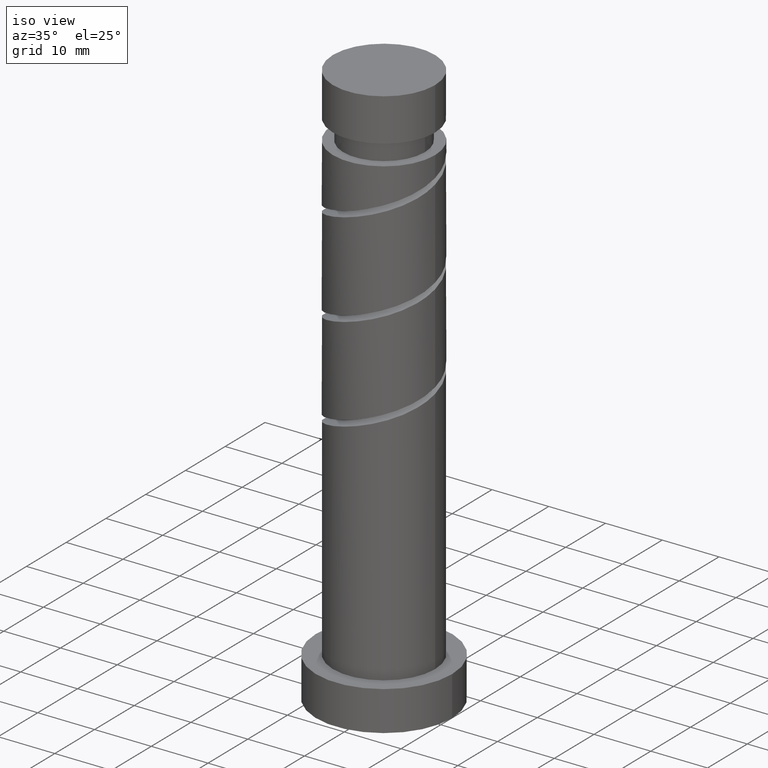
[diagram: clean part render]
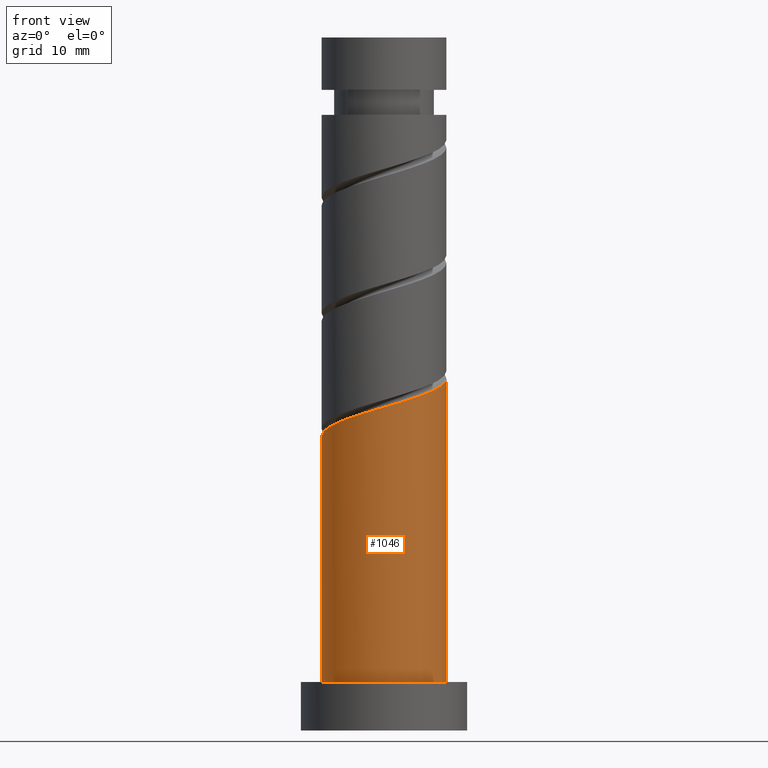
[diagram: tour spotlight — one face highlighted and labeled with its STEP entity id]
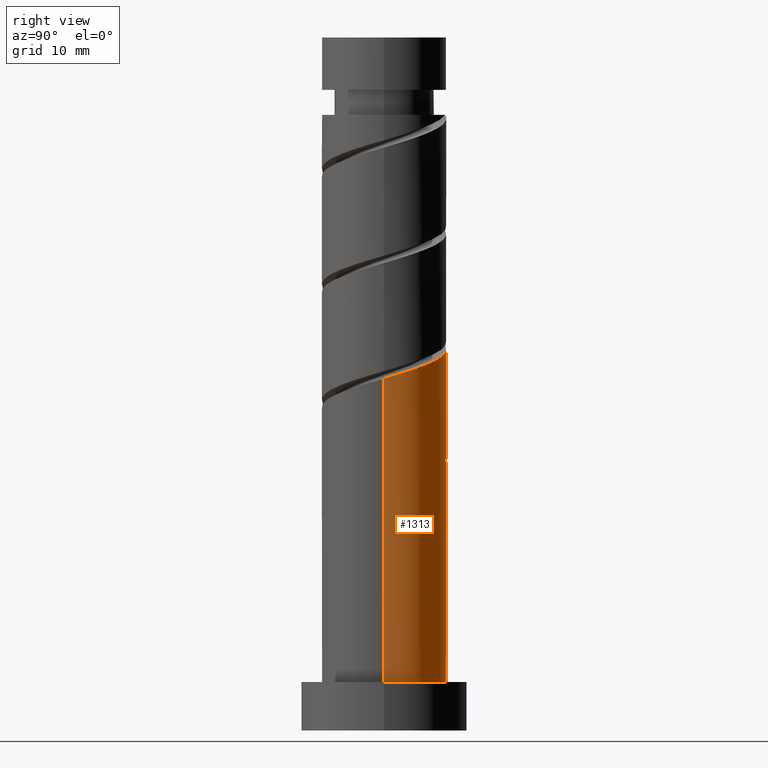
[diagram: tour spotlight — one face highlighted and labeled with its STEP entity id]
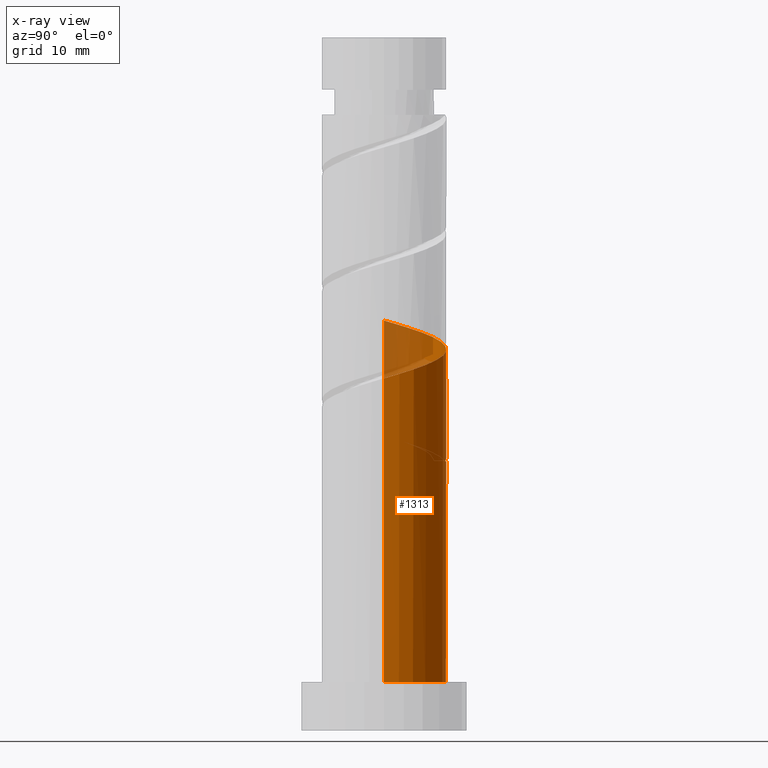
[diagram: x-ray of the same camera — body ghosted, this tour face saturated]
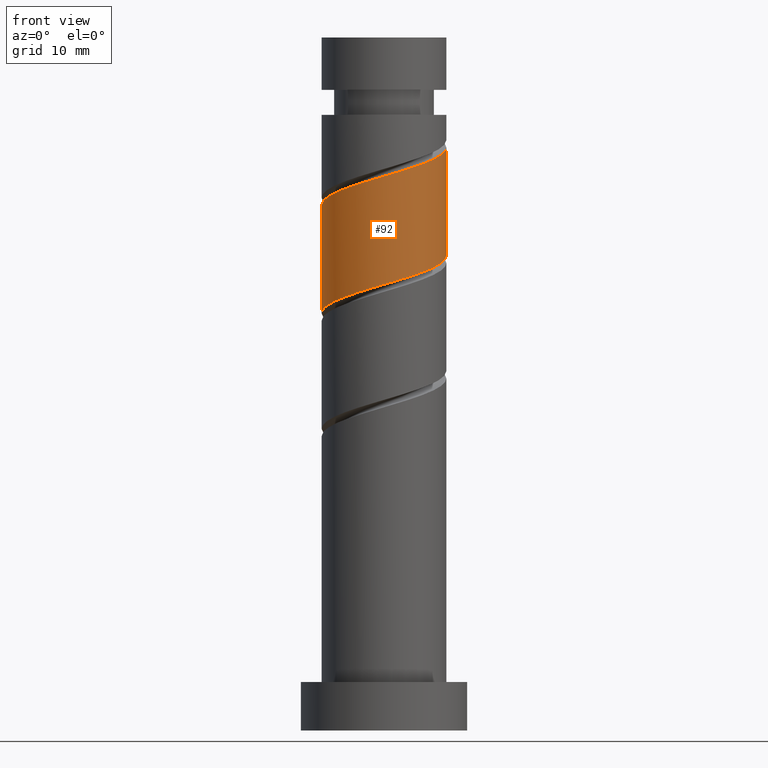
[diagram: tour spotlight — one face highlighted and labeled with its STEP entity id]
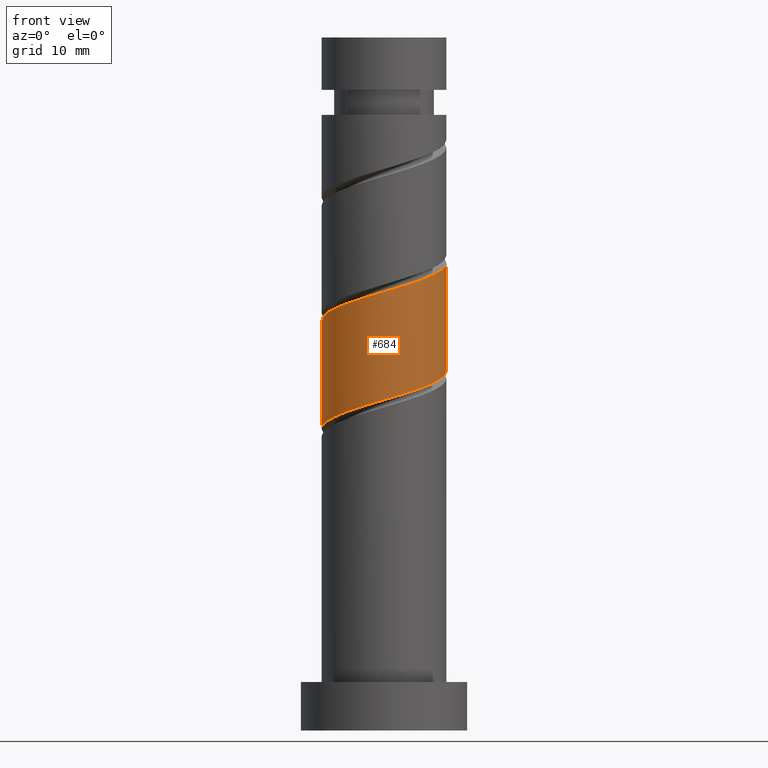
[diagram: tour spotlight — one face highlighted and labeled with its STEP entity id]
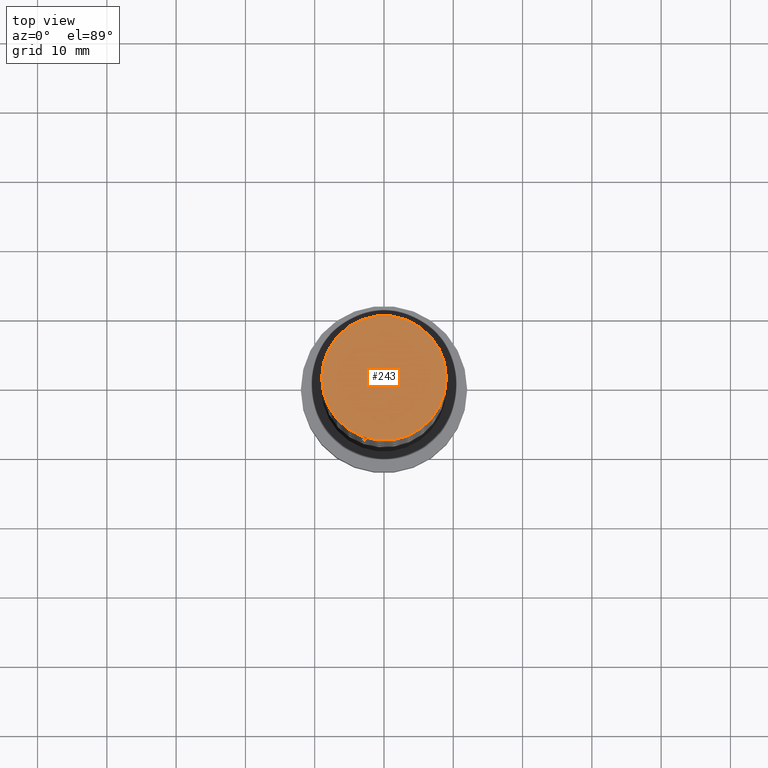
[diagram: tour spotlight — one face highlighted and labeled with its STEP entity id]
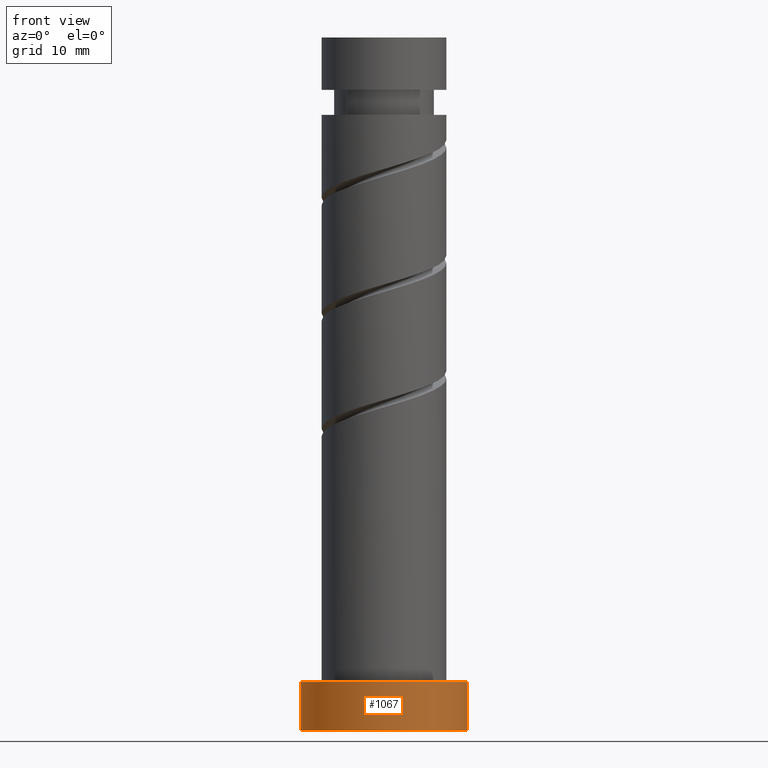
[diagram: tour spotlight — one face highlighted and labeled with its STEP entity id]
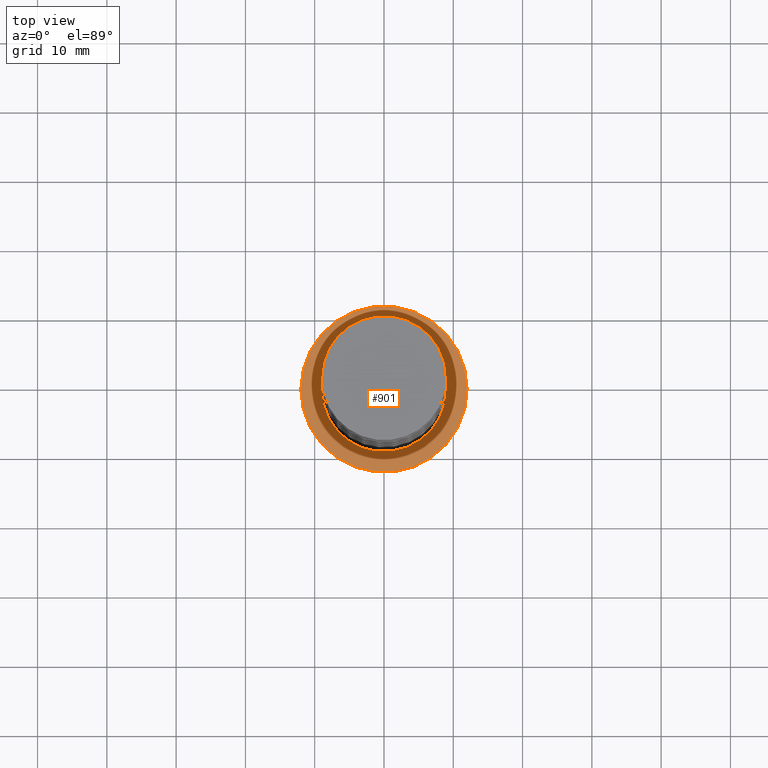
[diagram: tour spotlight — one face highlighted and labeled with its STEP entity id]
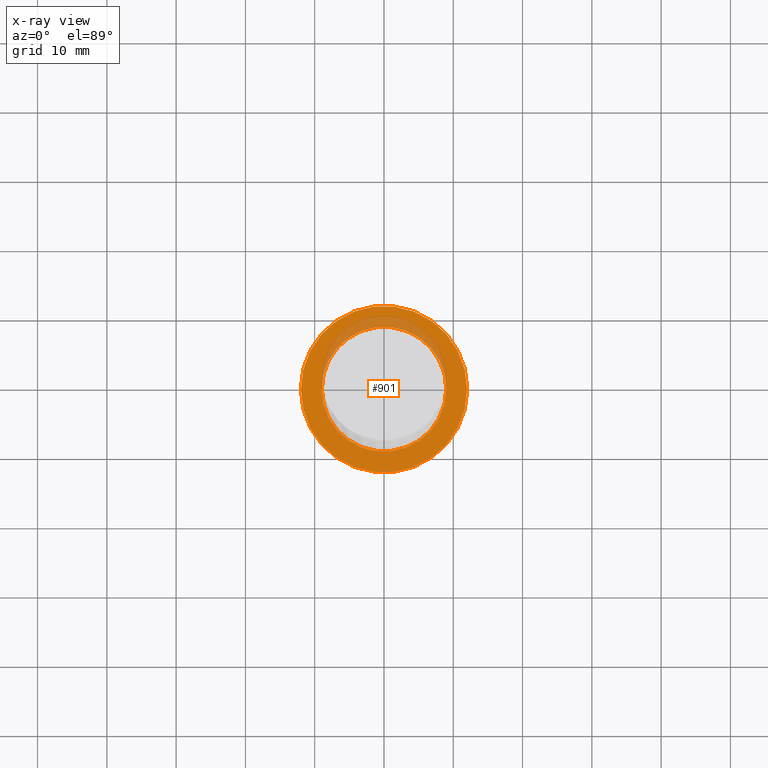
[diagram: x-ray of the same camera — body ghosted, this tour face saturated]
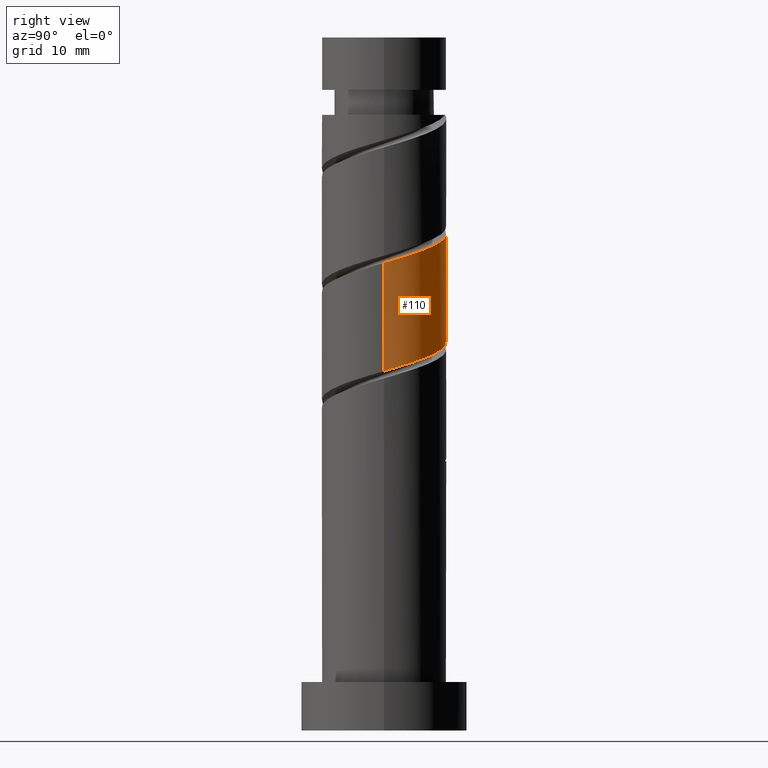
[diagram: tour spotlight — one face highlighted and labeled with its STEP entity id]
A machine part: a face-by-face anatomy tour. The part has 21 B-rep faces; the first image is the clean iso view, then the 8 largest visible faces are spotlighted one at a time (largest first), each with its STEP entity span.

Face 1 — front view, entity #1046. In plain terms, the highlighted cylindrical surface (partial cylindrical patch) has radius 9 mm, axis along (-0, -0, -1).
Definition (entity closure, byte-faithful):
#1 = CARTESIAN_POINT ( 'NONE',  ( -9.000000000000008882, -0.1161150689881842585, 42.51647233363011225 ) ) ;
#2 = ORIENTED_EDGE ( 'NONE', *, *, #941, .T. ) ;
#11 = LINE ( 'NONE', #360, #1248 ) ;
#17 = DIRECTION ( 'NONE',  ( -0.000000000000000000, -0.000000000000000000, -1.000000000000000000 ) ) ;
#65 = CARTESIAN_POINT ( 'NONE',  ( 6.052990440349811152, -6.846874780746384559, 48.56886540357541548 ) ) ;
#80 = EDGE_CURVE ( 'NONE', #1151, #347, #11, .T. ) ;
#117 = CARTESIAN_POINT ( 'NONE',  ( -8.956062716832283499, -1.818606099834100931, 43.01330984801985835 ) ) ;
#148 = CARTESIAN_POINT ( 'NONE',  ( -4.297418442531588667, -7.907730061768014629, 45.32812466283465369 ) ) ;
#168 = CARTESIAN_POINT ( 'NONE',  ( 7.041354992338979102, -5.605293914850772552, 49.03182836653836318 ) ) ;
#247 = CARTESIAN_POINT ( 'NONE',  ( -8.375004422108588642, -3.295345343004549843, 43.47627281098281316 ) ) ;
#256 = CARTESIAN_POINT ( 'NONE',  ( 0.000000000000000000, 0.000000000000000000, 100.0000000000000000 ) ) ;
#292 = CARTESIAN_POINT ( 'NONE',  ( 9.000000000000010658, -7.200581875602767441E-15, 50.81578829303109046 ) ) ;
#306 = CARTESIAN_POINT ( 'NONE',  ( 8.533832754774712370, -2.858968085434741457, 49.95775429246428700 ) ) ;
#315 = EDGE_LOOP ( 'NONE', ( #1032, #1389, #338, #2 ) ) ;
#338 = ORIENTED_EDGE ( 'NONE', *, *, #997, .T. ) ;
#347 = VERTEX_POINT ( 'NONE', #1181 ) ;
#360 = CARTESIAN_POINT ( 'NONE',  ( 9.000000000000000000, 1.102182119232617517E-15, 100.0000000000000000 ) ) ;
#398 =( BOUNDED_CURVE ( )  B_SPLINE_CURVE ( 2, ( #822, #1, #938, #117, #247, #946, #832, #565, #148, #973, #736, #877, #516, #1430, #1310, #65, #168, #1223, #306, #405, #292 ),
 .UNSPECIFIED., .F., .T. ) 
 B_SPLINE_CURVE_WITH_KNOTS ( ( 3, 2, 2, 2, 2, 2, 2, 2, 2, 2, 3 ),
 ( 0.05452480538552905570, 0.05555555555555558023, 0.06944444444444441977, 0.08333333333333337034, 0.09722222222222220989, 0.1111111111111111605, 0.1250000000000000000, 0.1388888888888888395, 0.1527777777777777901, 0.1666666666666666297, 0.1795248053855290626 ),
 .UNSPECIFIED. ) 
 CURVE ( )  GEOMETRIC_REPRESENTATION_ITEM ( )  RATIONAL_B_SPLINE_CURVE ( ( 0.9071930855141258077, 0.9080659294509734192, 0.9090909090909135015, 0.8952797754656478535, 0.9090909090909135015, 0.8952797754656478535, 0.9090909090909135015, 0.8952797754656478535, 0.9090909090909135015, 0.8952797754656478535, 0.9090909090909135015, 0.8952797754656478535, 0.9090909090909135015, 0.8952797754656478535, 0.9090909090909135015, 0.8952797754656478535, 0.9090909090909135015, 0.8952797754656478535, 0.9090909090909135015, 0.8963047551055879358, 0.9071930855141256966 ) ) 
 REPRESENTATION_ITEM ( '' )  );
#405 = CARTESIAN_POINT ( 'NONE',  ( 9.000000000000012434, -1.467489346384119875, 50.38586878066547570 ) ) ;
#428 = CARTESIAN_POINT ( 'NONE',  ( 9.000000000000010658, -7.200581875602767441E-15, 50.81578829303109757 ) ) ;
#459 = CARTESIAN_POINT ( 'NONE',  ( 0.000000000000000000, 0.000000000000000000, 7.000000000000000000 ) ) ;
#468 = VERTEX_POINT ( 'NONE', #1315 ) ;
#516 = CARTESIAN_POINT ( 'NONE',  ( 1.790977386791915427, -8.820000000000012719, 47.17997651468652975 ) ) ;
#565 = CARTESIAN_POINT ( 'NONE',  ( -5.691764608580704987, -7.149979242955548209, 44.86516169987172020 ) ) ;
#690 = CYLINDRICAL_SURFACE ( 'NONE', #1063, 9.000000000000000000 ) ;
#699 = DIRECTION ( 'NONE',  ( -0.000000000000000000, -0.000000000000000000, -1.000000000000000000 ) ) ;
#708 = LINE ( 'NONE', #1062, #894 ) ;
#736 = CARTESIAN_POINT ( 'NONE',  ( -1.333649429769610206, -8.900639257855328168, 46.25405058876059172 ) ) ;
#796 = CIRCLE ( 'NONE', #848, 9.000000000000000000 ) ;
#822 = CARTESIAN_POINT ( 'NONE',  ( -9.000000000000010658, 7.215520842149660164E-15, 42.48245495969775476 ) ) ;
#832 = CARTESIAN_POINT ( 'NONE',  ( -6.742855367982798498, -5.961031914565271705, 44.40219873690873698 ) ) ;
#848 = AXIS2_PLACEMENT_3D ( 'NONE', #459, #927, #1385 ) ;
#877 = CARTESIAN_POINT ( 'NONE',  ( 0.2357734169432503246, -9.135797635130170846, 46.71701355172357495 ) ) ;
#894 = VECTOR ( 'NONE', #17, 1000.000000000000000 ) ;
#927 = DIRECTION ( 'NONE',  ( 0.000000000000000000, 0.000000000000000000, 1.000000000000000000 ) ) ;
#938 = CARTESIAN_POINT ( 'NONE',  ( -8.997004341026784147, -0.2321914889598951093, 42.55034688505688933 ) ) ;
#941 = EDGE_CURVE ( 'NONE', #468, #347, #796, .T. ) ;
#946 = CARTESIAN_POINT ( 'NONE',  ( -7.793946127384896450, -4.772084586175003196, 43.93923577394579638 ) ) ;
#973 = CARTESIAN_POINT ( 'NONE',  ( -2.903072276482469682, -8.665480880580485490, 45.79108762579763692 ) ) ;
#997 = EDGE_CURVE ( 'NONE', #1289, #468, #708, .T. ) ;
#1032 = ORIENTED_EDGE ( 'NONE', *, *, #80, .F. ) ;
#1046 = ADVANCED_FACE ( 'NONE', ( #1141 ), #690, .T. ) ;
#1062 = CARTESIAN_POINT ( 'NONE',  ( -9.000000000000000000, 0.000000000000000000, 100.0000000000000000 ) ) ;
#1063 = AXIS2_PLACEMENT_3D ( 'NONE', #256, #699, #1395 ) ;
#1066 = EDGE_CURVE ( 'NONE', #1289, #1151, #398, .T. ) ;
#1140 = CARTESIAN_POINT ( 'NONE',  ( -9.000000000000010658, 7.215520842149660164E-15, 42.48245495969775476 ) ) ;
#1141 = FACE_OUTER_BOUND ( 'NONE', #315, .T. ) ;
#1143 = DIRECTION ( 'NONE',  ( -0.000000000000000000, -0.000000000000000000, -1.000000000000000000 ) ) ;
#1151 = VERTEX_POINT ( 'NONE', #428 ) ;
#1181 = CARTESIAN_POINT ( 'NONE',  ( 9.000000000000000000, 1.102182119232617517E-15, 7.000000000000000000 ) ) ;
#1223 = CARTESIAN_POINT ( 'NONE',  ( 8.029719544328147052, -4.363713048955166762, 49.49479132950133931 ) ) ;
#1248 = VECTOR ( 'NONE', #1143, 1000.000000000000000 ) ;
#1289 = VERTEX_POINT ( 'NONE', #1140 ) ;
#1310 = CARTESIAN_POINT ( 'NONE',  ( 4.699585898495195480, -7.675538572808118687, 48.10590244061243936 ) ) ;
#1315 = CARTESIAN_POINT ( 'NONE',  ( -9.000000000000000000, 0.000000000000000000, 7.000000000000000000 ) ) ;
#1385 = DIRECTION ( 'NONE',  ( 1.000000000000000000, 0.000000000000000000, 0.000000000000000000 ) ) ;
#1389 = ORIENTED_EDGE ( 'NONE', *, *, #1066, .F. ) ;
#1395 = DIRECTION ( 'NONE',  ( -1.000000000000000000, 0.000000000000000000, 0.000000000000000000 ) ) ;
#1430 = CARTESIAN_POINT ( 'NONE',  ( 3.346181356640577143, -8.504202364869854591, 47.64293947764947745 ) ) ;

Face 2 — right view, entity #1313. An x-ray twin of the same camera follows (body ghosted, this face saturated) — the face is partly hidden behind the body. In plain terms, the highlighted cylindrical surface (partial cylindrical patch) has radius 9 mm, axis along (-0, -0, -1).
Definition (entity closure, byte-faithful):
#8 = CARTESIAN_POINT ( 'NONE',  ( -8.029719544328148828, 4.363713048955165874, 41.16145799616799650 ) ) ;
#9 = CARTESIAN_POINT ( 'NONE',  ( 9.000000000000008882, 0.1161150689881855352, 50.84980566696345505 ) ) ;
#11 = LINE ( 'NONE', #360, #1248 ) ;
#16 = CARTESIAN_POINT ( 'NONE',  ( -8.956062716832269288, 1.818606099834100931, 43.01330984801985124 ) ) ;
#17 = DIRECTION ( 'NONE',  ( -0.000000000000000000, -0.000000000000000000, -1.000000000000000000 ) ) ;
#25 = CARTESIAN_POINT ( 'NONE',  ( 1.333649429769614869, 8.900639257855326392, 54.58738392209392742 ) ) ;
#37 = CARTESIAN_POINT ( 'NONE',  ( -9.000000000000010658, 7.215520842149660164E-15, 59.14912162636442616 ) ) ;
#60 = ORIENTED_EDGE ( 'NONE', *, *, #80, .T. ) ;
#80 = EDGE_CURVE ( 'NONE', #1151, #347, #11, .T. ) ;
#107 = DIRECTION ( 'NONE',  ( -0.000000000000000000, -0.000000000000000000, -1.000000000000000000 ) ) ;
#123 = CARTESIAN_POINT ( 'NONE',  ( 0.2357734169432543214, 9.135797635130154859, 39.30960614431616307 ) ) ;
#131 = CARTESIAN_POINT ( 'NONE',  ( -7.793946127384882239, 4.772084586174996979, 42.08738392209392032 ) ) ;
#137 = CARTESIAN_POINT ( 'NONE',  ( -3.346181356640580251, 8.504202364869854591, 39.30960614431614886 ) ) ;
#232 = CARTESIAN_POINT ( 'NONE',  ( 4.297418442531590443, 7.907730061768012852, 53.66145799616799650 ) ) ;
#238 = CARTESIAN_POINT ( 'NONE',  ( -9.000000000000008882, 1.467489346384114990, 58.71920211399880429 ) ) ;
#248 = ORIENTED_EDGE ( 'NONE', *, *, #1416, .F. ) ;
#264 = CARTESIAN_POINT ( 'NONE',  ( -6.052990440349812040, 6.846874780746382783, 56.90219873690874408 ) ) ;
#271 = CARTESIAN_POINT ( 'NONE',  ( -8.375004422108577984, 3.295345343004548511, 42.55034688505688933 ) ) ;
#296 =( BOUNDED_CURVE ( )  B_SPLINE_CURVE ( 2, ( #1060, #1302, #358, #16, #271, #131, #810, #728, #1388, #952, #945, #123, #1409 ),
 .UNSPECIFIED., .F., .T. ) 
 B_SPLINE_CURVE_WITH_KNOTS ( ( 3, 2, 2, 2, 2, 2, 3 ),
 ( 0.9295248053855290626, 0.9305555555555555802, 0.9444444444444444198, 0.9583333333333333703, 0.9722222222222222099, 0.9861111111111111605, 1.000000000000000000 ),
 .UNSPECIFIED. ) 
 CURVE ( )  GEOMETRIC_REPRESENTATION_ITEM ( )  RATIONAL_B_SPLINE_CURVE ( ( 0.9071930855141204786, 0.9080659294509680901, 0.9090909090909081725, 0.8952797754656427465, 0.9090909090909081725, 0.8952797754656427465, 0.9090909090909081725, 0.8952797754656427465, 0.9090909090909081725, 0.8952797754656427465, 0.9090909090909081725, 0.8952797754656427465, 0.9090909090909081725 ) ) 
 REPRESENTATION_ITEM ( '' )  );
#311 = DIRECTION ( 'NONE',  ( -1.000000000000000000, 0.000000000000000000, 0.000000000000000000 ) ) ;
#344 = FACE_OUTER_BOUND ( 'NONE', #430, .T. ) ;
#346 = CARTESIAN_POINT ( 'NONE',  ( -9.000000000000010658, 7.215520842149660164E-15, 59.14912162636442616 ) ) ;
#347 = VERTEX_POINT ( 'NONE', #1181 ) ;
#351 = CARTESIAN_POINT ( 'NONE',  ( -8.533832754774714147, 2.858968085434738349, 58.29108762579762271 ) ) ;
#358 = CARTESIAN_POINT ( 'NONE',  ( -8.997004341026771712, 0.2321914889598970799, 43.47627281098282026 ) ) ;
#360 = CARTESIAN_POINT ( 'NONE',  ( 9.000000000000000000, 1.102182119232617517E-15, 100.0000000000000000 ) ) ;
#365 = CARTESIAN_POINT ( 'NONE',  ( 2.903072276482476344, 8.665480880580483714, 54.12442095913097972 ) ) ;
#372 = DIRECTION ( 'NONE',  ( 1.000000000000000000, 0.000000000000000000, 0.000000000000000000 ) ) ;
#374 = CARTESIAN_POINT ( 'NONE',  ( 9.000000000000010658, -7.200581875602767441E-15, 50.81578829303109046 ) ) ;
#428 = CARTESIAN_POINT ( 'NONE',  ( 9.000000000000010658, -7.200581875602767441E-15, 50.81578829303109757 ) ) ;
#430 = EDGE_LOOP ( 'NONE', ( #1271, #60, #1478, #1419, #656, #1319, #248, #939 ) ) ;
#434 = CARTESIAN_POINT ( 'NONE',  ( 1.790977386791917425, 8.820000000000000284, 38.84664318135317984 ) ) ;
#463 = DIRECTION ( 'NONE',  ( 0.000000000000000000, 0.000000000000000000, 1.000000000000000000 ) ) ;
#468 = VERTEX_POINT ( 'NONE', #1315 ) ;
#474 = CARTESIAN_POINT ( 'NONE',  ( 8.997004341026784147, 0.2321914889598959419, 50.88368021839023214 ) ) ;
#483 = CARTESIAN_POINT ( 'NONE',  ( -3.346181356640580251, 8.504202364869854591, 55.97627281098282026 ) ) ;
#567 = EDGE_CURVE ( 'NONE', #949, #1406, #1457, .T. ) ;
#576 = AXIS2_PLACEMENT_3D ( 'NONE', #1166, #463, #372 ) ;
#577 = VERTEX_POINT ( 'NONE', #434 ) ;
#589 = CARTESIAN_POINT ( 'NONE',  ( -9.000000000000010658, 7.215520842149660164E-15, 42.48245495969775476 ) ) ;
#599 = CARTESIAN_POINT ( 'NONE',  ( -7.041354992338979102, 5.605293914850772552, 57.36516169987169889 ) ) ;
#607 =( BOUNDED_CURVE ( )  B_SPLINE_CURVE ( 2, ( #1037, #137, #838, #714, #1286, #8, #831, #1269, #589 ),
 .UNSPECIFIED., .F., .T. ) 
 B_SPLINE_CURVE_WITH_KNOTS ( ( 3, 2, 2, 2, 3 ),
 ( 0.000000000000000000, 0.01388888888888884128, 0.02777777777777779011, 0.04166666666666662966, 0.05452480538552905570 ),
 .UNSPECIFIED. ) 
 CURVE ( )  GEOMETRIC_REPRESENTATION_ITEM ( )  RATIONAL_B_SPLINE_CURVE ( ( 0.9090909090909135015, 0.8952797754656478535, 0.9090909090909135015, 0.8952797754656478535, 0.9090909090909135015, 0.8952797754656478535, 0.9090909090909135015, 0.8963047551055879358, 0.9071930855141258077 ) ) 
 REPRESENTATION_ITEM ( '' )  );
#623 = CIRCLE ( 'NONE', #576, 9.000000000000000000 ) ;
#638 = CARTESIAN_POINT ( 'NONE',  ( 0.000000000000000000, 0.000000000000000000, 38.84664318135317984 ) ) ;
#656 = ORIENTED_EDGE ( 'NONE', *, *, #1436, .F. ) ;
#662 = EDGE_CURVE ( 'NONE', #797, #577, #866, .T. ) ;
#708 = LINE ( 'NONE', #1062, #894 ) ;
#714 = CARTESIAN_POINT ( 'NONE',  ( -6.052990440349812040, 6.846874780746382783, 40.23553207024208689 ) ) ;
#728 = CARTESIAN_POINT ( 'NONE',  ( -5.691764608580696105, 7.149979242955538439, 41.16145799616801071 ) ) ;
#758 = DIRECTION ( 'NONE',  ( -0.000000000000000000, -0.000000000000000000, -1.000000000000000000 ) ) ;
#797 = VERTEX_POINT ( 'NONE', #1145 ) ;
#810 = CARTESIAN_POINT ( 'NONE',  ( -6.742855367982787840, 5.961031914565266376, 41.62442095913096551 ) ) ;
#811 = CARTESIAN_POINT ( 'NONE',  ( -4.699585898495195480, 7.675538572808118687, 56.43923577394578217 ) ) ;
#831 = CARTESIAN_POINT ( 'NONE',  ( -8.533832754774714147, 2.858968085434738349, 41.62442095913095841 ) ) ;
#838 = CARTESIAN_POINT ( 'NONE',  ( -4.699585898495195480, 7.675538572808118687, 39.77256910727911077 ) ) ;
#839 = CARTESIAN_POINT ( 'NONE',  ( 8.956062716832283499, 1.818606099834099821, 51.34664318135320116 ) ) ;
#866 = CIRCLE ( 'NONE', #1462, 9.000000000000000000 ) ;
#894 = VECTOR ( 'NONE', #17, 1000.000000000000000 ) ;
#923 = DIRECTION ( 'NONE',  ( -1.000000000000000000, 0.000000000000000000, 0.000000000000000000 ) ) ;
#924 = CARTESIAN_POINT ( 'NONE',  ( 6.742855367982798498, 5.961031914565274370, 52.73553207024208689 ) ) ;
#931 = CARTESIAN_POINT ( 'NONE',  ( 5.691764608580705875, 7.149979242955548209, 53.19849503320504880 ) ) ;
#939 = ORIENTED_EDGE ( 'NONE', *, *, #567, .F. ) ;
#945 = CARTESIAN_POINT ( 'NONE',  ( -1.333649429769605321, 8.900639257855317510, 39.77256910727912498 ) ) ;
#949 = VERTEX_POINT ( 'NONE', #346 ) ;
#952 = CARTESIAN_POINT ( 'NONE',  ( -2.903072276482464353, 8.665480880580476608, 40.23553207024207268 ) ) ;
#997 = EDGE_CURVE ( 'NONE', #1289, #468, #708, .T. ) ;
#998 = EDGE_CURVE ( 'NONE', #1151, #949, #1432, .T. ) ;
#1037 = CARTESIAN_POINT ( 'NONE',  ( -1.790977386791914316, 8.820000000000010942, 38.84664318135317984 ) ) ;
#1055 = CARTESIAN_POINT ( 'NONE',  ( 8.375004422108588642, 3.295345343004547622, 51.80960614431614175 ) ) ;
#1060 = CARTESIAN_POINT ( 'NONE',  ( -8.999999999999998224, -4.870103094287376416E-15, 43.54416473634194062 ) ) ;
#1062 = CARTESIAN_POINT ( 'NONE',  ( -9.000000000000000000, 0.000000000000000000, 100.0000000000000000 ) ) ;
#1107 = CARTESIAN_POINT ( 'NONE',  ( -9.000000000000000000, 0.000000000000000000, 100.0000000000000000 ) ) ;
#1140 = CARTESIAN_POINT ( 'NONE',  ( -9.000000000000010658, 7.215520842149660164E-15, 42.48245495969775476 ) ) ;
#1143 = DIRECTION ( 'NONE',  ( -0.000000000000000000, -0.000000000000000000, -1.000000000000000000 ) ) ;
#1145 = CARTESIAN_POINT ( 'NONE',  ( -1.790977386791914316, 8.820000000000010942, 38.84664318135317984 ) ) ;
#1151 = VERTEX_POINT ( 'NONE', #428 ) ;
#1155 = VECTOR ( 'NONE', #758, 1000.000000000000000 ) ;
#1159 = CARTESIAN_POINT ( 'NONE',  ( -8.999999999999998224, -4.870103094287376416E-15, 43.54416473634194062 ) ) ;
#1166 = CARTESIAN_POINT ( 'NONE',  ( 0.000000000000000000, 0.000000000000000000, 7.000000000000000000 ) ) ;
#1176 = CARTESIAN_POINT ( 'NONE',  ( -1.790977386791914538, 8.820000000000012719, 55.51330984801985124 ) ) ;
#1181 = CARTESIAN_POINT ( 'NONE',  ( 9.000000000000000000, 1.102182119232617517E-15, 7.000000000000000000 ) ) ;
#1225 = AXIS2_PLACEMENT_3D ( 'NONE', #1460, #107, #923 ) ;
#1243 = DIRECTION ( 'NONE',  ( 0.000000000000000000, -0.000000000000000000, -1.000000000000000000 ) ) ;
#1248 = VECTOR ( 'NONE', #1143, 1000.000000000000000 ) ;
#1269 = CARTESIAN_POINT ( 'NONE',  ( -9.000000000000008882, 1.467489346384115878, 42.05253544733215421 ) ) ;
#1271 = ORIENTED_EDGE ( 'NONE', *, *, #998, .F. ) ;
#1286 = CARTESIAN_POINT ( 'NONE',  ( -7.041354992338979102, 5.605293914850772552, 40.69849503320503459 ) ) ;
#1289 = VERTEX_POINT ( 'NONE', #1140 ) ;
#1293 = CARTESIAN_POINT ( 'NONE',  ( 7.793946127384898226, 4.772084586174996979, 52.27256910727911787 ) ) ;
#1302 = CARTESIAN_POINT ( 'NONE',  ( -8.999999999999998224, 0.1161150689881872838, 43.51014736240957603 ) ) ;
#1313 = ADVANCED_FACE ( 'NONE', ( #344 ), #1379, .T. ) ;
#1315 = CARTESIAN_POINT ( 'NONE',  ( -9.000000000000000000, 0.000000000000000000, 7.000000000000000000 ) ) ;
#1319 = ORIENTED_EDGE ( 'NONE', *, *, #662, .T. ) ;
#1379 = CYLINDRICAL_SURFACE ( 'NONE', #1225, 9.000000000000000000 ) ;
#1382 = CARTESIAN_POINT ( 'NONE',  ( -8.029719544328148828, 4.363713048955165874, 57.82812466283468211 ) ) ;
#1388 = CARTESIAN_POINT ( 'NONE',  ( -4.297418442531580673, 7.907730061768005747, 40.69849503320503459 ) ) ;
#1390 = CARTESIAN_POINT ( 'NONE',  ( -0.2357734169432531002, 9.135797635130169070, 55.05034688505688933 ) ) ;
#1406 = VERTEX_POINT ( 'NONE', #1159 ) ;
#1409 = CARTESIAN_POINT ( 'NONE',  ( 1.790977386791917647, 8.820000000000000284, 38.84664318135317984 ) ) ;
#1416 = EDGE_CURVE ( 'NONE', #1406, #577, #296, .T. ) ;
#1419 = ORIENTED_EDGE ( 'NONE', *, *, #997, .F. ) ;
#1423 = EDGE_CURVE ( 'NONE', #347, #468, #623, .T. ) ;
#1432 =( BOUNDED_CURVE ( )  B_SPLINE_CURVE ( 2, ( #374, #9, #474, #839, #1055, #1293, #924, #931, #232, #365, #25, #1390, #1176, #483, #811, #264, #599, #1382, #351, #238, #37 ),
 .UNSPECIFIED., .F., .T. ) 
 B_SPLINE_CURVE_WITH_KNOTS ( ( 3, 2, 2, 2, 2, 2, 2, 2, 2, 2, 3 ),
 ( 0.1795248053855290626, 0.1805555555555555802, 0.1944444444444444198, 0.2083333333333333703, 0.2222222222222222099, 0.2361111111111111605, 0.2500000000000000000, 0.2638888888888888395, 0.2777777777777777901, 0.2916666666666666297, 0.3045248053855290626 ),
 .UNSPECIFIED. ) 
 CURVE ( )  GEOMETRIC_REPRESENTATION_ITEM ( )  RATIONAL_B_SPLINE_CURVE ( ( 0.9071930855141256966, 0.9080659294509734192, 0.9090909090909135015, 0.8952797754656478535, 0.9090909090909135015, 0.8952797754656478535, 0.9090909090909135015, 0.8952797754656478535, 0.9090909090909135015, 0.8952797754656478535, 0.9090909090909135015, 0.8952797754656478535, 0.9090909090909135015, 0.8952797754656478535, 0.9090909090909135015, 0.8952797754656478535, 0.9090909090909135015, 0.8952797754656478535, 0.9090909090909135015, 0.8963047551055879358, 0.9071930855141256966 ) ) 
 REPRESENTATION_ITEM ( '' )  );
#1436 = EDGE_CURVE ( 'NONE', #797, #1289, #607, .T. ) ;
#1457 = LINE ( 'NONE', #1107, #1155 ) ;
#1460 = CARTESIAN_POINT ( 'NONE',  ( 0.000000000000000000, 0.000000000000000000, 100.0000000000000000 ) ) ;
#1462 = AXIS2_PLACEMENT_3D ( 'NONE', #638, #1243, #311 ) ;
#1478 = ORIENTED_EDGE ( 'NONE', *, *, #1423, .T. ) ;

Face 3 — front view, entity #92. In plain terms, the highlighted cylindrical surface (partial cylindrical patch) has radius 9 mm, axis along (-0, -0, -1).
Definition (entity closure, byte-faithful):
#12 = CARTESIAN_POINT ( 'NONE',  ( 9.000000000000000000, 1.478957688142485494E-15, 68.54416473634195484 ) ) ;
#58 = CARTESIAN_POINT ( 'NONE',  ( 1.790977386791915427, -8.820000000000012719, 80.51330984801987256 ) ) ;
#71 = CARTESIAN_POINT ( 'NONE',  ( -6.742855367982798498, -5.961031914565271705, 77.73553207024207268 ) ) ;
#84 = CARTESIAN_POINT ( 'NONE',  ( 7.041354992338979102, -5.605293914850772552, 82.36516169987170599 ) ) ;
#92 = ADVANCED_FACE ( 'NONE', ( #1033 ), #458, .T. ) ;
#104 = CARTESIAN_POINT ( 'NONE',  ( -4.699585898495192815, -7.675538572808108029, 62.92071725542724892 ) ) ;
#109 = CARTESIAN_POINT ( 'NONE',  ( 9.000000000000000000, 1.102182119232617517E-15, 100.0000000000000000 ) ) ;
#138 = EDGE_CURVE ( 'NONE', #1294, #824, #1135, .T. ) ;
#178 = LINE ( 'NONE', #1428, #337 ) ;
#192 = CARTESIAN_POINT ( 'NONE',  ( -8.375004422108588642, -3.295345343004549843, 76.80960614431613465 ) ) ;
#220 = CARTESIAN_POINT ( 'NONE',  ( 8.956062716832269288, -1.818606099834102041, 68.01330984801984414 ) ) ;
#240 = DIRECTION ( 'NONE',  ( -1.000000000000000000, 0.000000000000000000, 0.000000000000000000 ) ) ;
#251 = CARTESIAN_POINT ( 'NONE',  ( 7.793946127384880462, -4.772084586175002308, 67.08738392209393453 ) ) ;
#298 = CARTESIAN_POINT ( 'NONE',  ( 9.000000000000015987, -1.467489346384108106, 83.71920211399879008 ) ) ;
#307 = EDGE_CURVE ( 'NONE', #591, #1023, #178, .T. ) ;
#337 = VECTOR ( 'NONE', #1087, 1000.000000000000000 ) ;
#341 = CARTESIAN_POINT ( 'NONE',  ( 9.000000000000001776, -0.1161150689881905590, 68.51014736240958314 ) ) ;
#373 = ORIENTED_EDGE ( 'NONE', *, *, #1104, .F. ) ;
#412 = CARTESIAN_POINT ( 'NONE',  ( -9.000000000000012434, -4.362178231692962298E-15, 75.81578829303109046 ) ) ;
#426 = AXIS2_PLACEMENT_3D ( 'NONE', #1384, #1040, #240 ) ;
#447 = EDGE_LOOP ( 'NONE', ( #1127, #373, #610, #1206 ) ) ;
#449 =( BOUNDED_CURVE ( )  B_SPLINE_CURVE ( 2, ( #412, #633, #984, #1202, #192, #761, #71, #649, #519, #1441, #871, #1082, #58, #621, #511, #1110, #84, #965, #1331, #298, #1425 ),
 .UNSPECIFIED., .F., .T. ) 
 B_SPLINE_CURVE_WITH_KNOTS ( ( 3, 2, 2, 2, 2, 2, 2, 2, 2, 2, 3 ),
 ( 0.5545248053855291737, 0.5555555555555555802, 0.5694444444444444198, 0.5833333333333332593, 0.5972222222222222099, 0.6111111111111111605, 0.6250000000000000000, 0.6388888888888888395, 0.6527777777777777901, 0.6666666666666667407, 0.6795248053855291737 ),
 .UNSPECIFIED. ) 
 CURVE ( )  GEOMETRIC_REPRESENTATION_ITEM ( )  RATIONAL_B_SPLINE_CURVE ( ( 0.9071930855141259187, 0.9080659294509735302, 0.9090909090909135015, 0.8952797754656478535, 0.9090909090909135015, 0.8952797754656478535, 0.9090909090909135015, 0.8952797754656478535, 0.9090909090909135015, 0.8952797754656478535, 0.9090909090909135015, 0.8952797754656478535, 0.9090909090909135015, 0.8952797754656478535, 0.9090909090909135015, 0.8952797754656478535, 0.9090909090909135015, 0.8952797754656478535, 0.9090909090909135015, 0.8963047551055878248, 0.9071930855141259187 ) ) 
 REPRESENTATION_ITEM ( '' )  );
#451 = CARTESIAN_POINT ( 'NONE',  ( -8.029719544328138170, -4.363713048955159657, 61.53182836653835608 ) ) ;
#458 = CYLINDRICAL_SURFACE ( 'NONE', #426, 9.000000000000000000 ) ;
#511 = CARTESIAN_POINT ( 'NONE',  ( 4.699585898495195480, -7.675538572808118687, 81.43923577394578217 ) ) ;
#519 = CARTESIAN_POINT ( 'NONE',  ( -4.297418442531588667, -7.907730061768014629, 78.66145799616798229 ) ) ;
#560 = CARTESIAN_POINT ( 'NONE',  ( 5.691764608580694329, -7.149979242955538439, 66.16145799616801071 ) ) ;
#586 = CARTESIAN_POINT ( 'NONE',  ( -0.2357734169432577076, -9.135797635130156635, 64.30960614431614886 ) ) ;
#591 = VERTEX_POINT ( 'NONE', #1467 ) ;
#610 = ORIENTED_EDGE ( 'NONE', *, *, #307, .T. ) ;
#621 = CARTESIAN_POINT ( 'NONE',  ( 3.346181356640577143, -8.504202364869854591, 80.97627281098282026 ) ) ;
#633 = CARTESIAN_POINT ( 'NONE',  ( -9.000000000000010658, -0.1161150689881967762, 75.84980566696341953 ) ) ;
#643 = VECTOR ( 'NONE', #1049, 1000.000000000000000 ) ;
#649 = CARTESIAN_POINT ( 'NONE',  ( -5.691764608580704987, -7.149979242955548209, 78.19849503320506301 ) ) ;
#710 = CARTESIAN_POINT ( 'NONE',  ( -3.346181356640579363, -8.504202364869842157, 63.38368021839021793 ) ) ;
#761 = CARTESIAN_POINT ( 'NONE',  ( -7.793946127384896450, -4.772084586175003196, 77.27256910727912498 ) ) ;
#800 = CARTESIAN_POINT ( 'NONE',  ( -9.000000000000003553, -1.467489346384109883, 60.64075091537421969 ) ) ;
#815 = CARTESIAN_POINT ( 'NONE',  ( 4.297418442531580673, -7.907730061768005747, 65.69849503320503459 ) ) ;
#824 = VERTEX_POINT ( 'NONE', #1473 ) ;
#871 = CARTESIAN_POINT ( 'NONE',  ( -1.333649429769610206, -8.900639257855328168, 79.58738392209393453 ) ) ;
#909 = EDGE_CURVE ( 'NONE', #824, #1023, #974, .T. ) ;
#918 = CARTESIAN_POINT ( 'NONE',  ( -8.533832754774708818, -2.858968085434730799, 61.06886540357540838 ) ) ;
#934 = CARTESIAN_POINT ( 'NONE',  ( 8.375004422108577984, -3.295345343004548067, 67.55034688505688223 ) ) ;
#965 = CARTESIAN_POINT ( 'NONE',  ( 8.029719544328147052, -4.363713048955166762, 82.82812466283466790 ) ) ;
#974 =( BOUNDED_CURVE ( )  B_SPLINE_CURVE ( 2, ( #12, #341, #1282, #220, #934, #251, #1019, #560, #815, #1258, #1163, #586, #1273, #710, #104, #1026, #1483, #451, #918, #800, #1034 ),
 .UNSPECIFIED., .F., .T. ) 
 B_SPLINE_CURVE_WITH_KNOTS ( ( 3, 2, 2, 2, 2, 2, 2, 2, 2, 2, 3 ),
 ( 0.5545248053855290626, 0.5555555555555555802, 0.5694444444444444198, 0.5833333333333333703, 0.5972222222222222099, 0.6111111111111111605, 0.6250000000000000000, 0.6388888888888888395, 0.6527777777777777901, 0.6666666666666666297, 0.6795248053855290626 ),
 .UNSPECIFIED. ) 
 CURVE ( )  GEOMETRIC_REPRESENTATION_ITEM ( )  RATIONAL_B_SPLINE_CURVE ( ( 0.9071930855141204786, 0.9080659294509680901, 0.9090909090909081725, 0.8952797754656427465, 0.9090909090909081725, 0.8952797754656427465, 0.9090909090909081725, 0.8952797754656427465, 0.9090909090909081725, 0.8952797754656427465, 0.9090909090909081725, 0.8952797754656427465, 0.9090909090909081725, 0.8952797754656427465, 0.9090909090909081725, 0.8952797754656427465, 0.9090909090909081725, 0.8952797754656427465, 0.9090909090909081725, 0.8963047551055828288, 0.9071930855141204786 ) ) 
 REPRESENTATION_ITEM ( '' )  );
#984 = CARTESIAN_POINT ( 'NONE',  ( -8.997004341026784147, -0.2321914889598951093, 75.88368021839019661 ) ) ;
#1007 = CARTESIAN_POINT ( 'NONE',  ( 9.000000000000012434, 4.406995131333643623E-15, 84.14912162636441906 ) ) ;
#1019 = CARTESIAN_POINT ( 'NONE',  ( 6.742855367982787840, -5.961031914565269929, 66.62442095913097262 ) ) ;
#1023 = VERTEX_POINT ( 'NONE', #1270 ) ;
#1026 = CARTESIAN_POINT ( 'NONE',  ( -6.052990440349804047, -6.846874780746373013, 62.45775429246428700 ) ) ;
#1033 = FACE_OUTER_BOUND ( 'NONE', #447, .T. ) ;
#1034 = CARTESIAN_POINT ( 'NONE',  ( -8.999999999999998224, -4.870103094287376416E-15, 60.21083140300861203 ) ) ;
#1040 = DIRECTION ( 'NONE',  ( -0.000000000000000000, -0.000000000000000000, -1.000000000000000000 ) ) ;
#1049 = DIRECTION ( 'NONE',  ( -0.000000000000000000, -0.000000000000000000, -1.000000000000000000 ) ) ;
#1082 = CARTESIAN_POINT ( 'NONE',  ( 0.2357734169432503246, -9.135797635130170846, 80.05034688505689644 ) ) ;
#1087 = DIRECTION ( 'NONE',  ( -0.000000000000000000, -0.000000000000000000, -1.000000000000000000 ) ) ;
#1104 = EDGE_CURVE ( 'NONE', #591, #1294, #449, .T. ) ;
#1110 = CARTESIAN_POINT ( 'NONE',  ( 6.052990440349811152, -6.846874780746384559, 81.90219873690877250 ) ) ;
#1127 = ORIENTED_EDGE ( 'NONE', *, *, #138, .F. ) ;
#1135 = LINE ( 'NONE', #109, #643 ) ;
#1163 = CARTESIAN_POINT ( 'NONE',  ( 1.333649429769604877, -8.900639257855317510, 64.77256910727912498 ) ) ;
#1202 = CARTESIAN_POINT ( 'NONE',  ( -8.956062716832283499, -1.818606099834100931, 76.34664318135318695 ) ) ;
#1206 = ORIENTED_EDGE ( 'NONE', *, *, #909, .F. ) ;
#1258 = CARTESIAN_POINT ( 'NONE',  ( 2.903072276482463909, -8.665480880580476608, 65.23553207024207268 ) ) ;
#1270 = CARTESIAN_POINT ( 'NONE',  ( -8.999999999999998224, -4.870103094287376416E-15, 60.21083140300861203 ) ) ;
#1273 = CARTESIAN_POINT ( 'NONE',  ( -1.790977386791916981, -8.820000000000000284, 63.84664318135320826 ) ) ;
#1282 = CARTESIAN_POINT ( 'NONE',  ( 8.997004341026773488, -0.2321914889599002163, 68.47627281098282026 ) ) ;
#1294 = VERTEX_POINT ( 'NONE', #1007 ) ;
#1331 = CARTESIAN_POINT ( 'NONE',  ( 8.533832754774712370, -2.858968085434741457, 83.29108762579764402 ) ) ;
#1384 = CARTESIAN_POINT ( 'NONE',  ( 0.000000000000000000, 0.000000000000000000, 100.0000000000000000 ) ) ;
#1425 = CARTESIAN_POINT ( 'NONE',  ( 9.000000000000012434, 4.406995131333643623E-15, 84.14912162636441906 ) ) ;
#1428 = CARTESIAN_POINT ( 'NONE',  ( -9.000000000000000000, 0.000000000000000000, 100.0000000000000000 ) ) ;
#1441 = CARTESIAN_POINT ( 'NONE',  ( -2.903072276482469682, -8.665480880580485490, 79.12442095913102946 ) ) ;
#1467 = CARTESIAN_POINT ( 'NONE',  ( -9.000000000000012434, -4.362178231692962298E-15, 75.81578829303109046 ) ) ;
#1473 = CARTESIAN_POINT ( 'NONE',  ( 9.000000000000000000, 1.478957688142485494E-15, 68.54416473634195484 ) ) ;
#1483 = CARTESIAN_POINT ( 'NONE',  ( -7.041354992338972885, -5.605293914850765447, 61.99479132950133931 ) ) ;

Face 4 — front view, entity #684. In plain terms, the highlighted cylindrical surface (partial cylindrical patch) has radius 9 mm, axis along (-0, -0, -1).
Definition (entity closure, byte-faithful):
#81 = CARTESIAN_POINT ( 'NONE',  ( -8.533832754774708818, -2.858968085434730799, 44.40219873690874408 ) ) ;
#96 = CARTESIAN_POINT ( 'NONE',  ( 6.742855367982787840, -5.961031914565269929, 49.95775429246429411 ) ) ;
#124 = CARTESIAN_POINT ( 'NONE',  ( -4.297418442531588667, -7.907730061768014629, 61.99479132950133220 ) ) ;
#140 = CARTESIAN_POINT ( 'NONE',  ( -5.691764608580704987, -7.149979242955548209, 61.53182836653837740 ) ) ;
#141 = VERTEX_POINT ( 'NONE', #476 ) ;
#182 = CARTESIAN_POINT ( 'NONE',  ( -0.2357734169432577076, -9.135797635130156635, 47.64293947764947745 ) ) ;
#233 = VERTEX_POINT ( 'NONE', #1408 ) ;
#303 = CARTESIAN_POINT ( 'NONE',  ( -3.346181356640579363, -8.504202364869842157, 46.71701355172355363 ) ) ;
#320 = CARTESIAN_POINT ( 'NONE',  ( 8.956062716832269288, -1.818606099834102041, 51.34664318135317984 ) ) ;
#328 = CARTESIAN_POINT ( 'NONE',  ( -6.052990440349804047, -6.846874780746373013, 45.79108762579763692 ) ) ;
#346 = CARTESIAN_POINT ( 'NONE',  ( -9.000000000000010658, 7.215520842149660164E-15, 59.14912162636442616 ) ) ;
#359 = CARTESIAN_POINT ( 'NONE',  ( -8.375004422108588642, -3.295345343004549843, 60.14293947764949166 ) ) ;
#424 = CARTESIAN_POINT ( 'NONE',  ( -9.000000000000003553, -1.467489346384109883, 43.97408424870756249 ) ) ;
#446 = EDGE_LOOP ( 'NONE', ( #955, #682, #603, #940 ) ) ;
#457 = CARTESIAN_POINT ( 'NONE',  ( 7.041354992338979102, -5.605293914850772552, 65.69849503320503459 ) ) ;
#467 = CARTESIAN_POINT ( 'NONE',  ( 8.029719544328147052, -4.363713048955166762, 66.16145799616801071 ) ) ;
#476 = CARTESIAN_POINT ( 'NONE',  ( 9.000000000000010658, -7.200581875602767441E-15, 67.48245495969776186 ) ) ;
#481 = LINE ( 'NONE', #1292, #867 ) ;
#492 = CARTESIAN_POINT ( 'NONE',  ( -1.333649429769610206, -8.900639257855328168, 62.92071725542724892 ) ) ;
#523 = CARTESIAN_POINT ( 'NONE',  ( 0.000000000000000000, 0.000000000000000000, 100.0000000000000000 ) ) ;
#531 = CARTESIAN_POINT ( 'NONE',  ( 8.375004422108577984, -3.295345343004548067, 50.88368021839023214 ) ) ;
#537 = CARTESIAN_POINT ( 'NONE',  ( 9.000000000000001776, -0.1161150689881905590, 51.84348069574291173 ) ) ;
#544 = CARTESIAN_POINT ( 'NONE',  ( 9.000000000000000000, 1.478957688142485494E-15, 51.87749806967526922 ) ) ;
#567 = EDGE_CURVE ( 'NONE', #949, #1406, #1457, .T. ) ;
#575 = CARTESIAN_POINT ( 'NONE',  ( -6.742855367982798498, -5.961031914565271705, 61.06886540357541548 ) ) ;
#583 = CARTESIAN_POINT ( 'NONE',  ( -8.956062716832283499, -1.818606099834100931, 59.67997651468652265 ) ) ;
#590 = CARTESIAN_POINT ( 'NONE',  ( 9.000000000000010658, -7.200581875602767441E-15, 67.48245495969776186 ) ) ;
#602 = AXIS2_PLACEMENT_3D ( 'NONE', #523, #1220, #753 ) ;
#603 = ORIENTED_EDGE ( 'NONE', *, *, #567, .T. ) ;
#646 = CARTESIAN_POINT ( 'NONE',  ( -1.790977386791916981, -8.820000000000000284, 47.17997651468651554 ) ) ;
#668 = CARTESIAN_POINT ( 'NONE',  ( 4.297418442531580673, -7.907730061768005747, 49.03182836653838450 ) ) ;
#682 = ORIENTED_EDGE ( 'NONE', *, *, #989, .F. ) ;
#684 = ADVANCED_FACE ( 'NONE', ( #1450 ), #1013, .T. ) ;
#747 = EDGE_CURVE ( 'NONE', #233, #1406, #1219, .T. ) ;
#753 = DIRECTION ( 'NONE',  ( -1.000000000000000000, 0.000000000000000000, 0.000000000000000000 ) ) ;
#758 = DIRECTION ( 'NONE',  ( -0.000000000000000000, -0.000000000000000000, -1.000000000000000000 ) ) ;
#767 = CARTESIAN_POINT ( 'NONE',  ( -8.029719544328138170, -4.363713048955159657, 44.86516169987171310 ) ) ;
#783 = CARTESIAN_POINT ( 'NONE',  ( -7.041354992338972885, -5.605293914850765447, 45.32812466283468211 ) ) ;
#804 = CARTESIAN_POINT ( 'NONE',  ( -7.793946127384896450, -4.772084586175003196, 60.60590244061245357 ) ) ;
#867 = VECTOR ( 'NONE', #937, 1000.000000000000000 ) ;
#874 = CARTESIAN_POINT ( 'NONE',  ( 8.997004341026773488, -0.2321914889599002163, 51.80960614431614886 ) ) ;
#903 = CARTESIAN_POINT ( 'NONE',  ( 7.793946127384880462, -4.772084586175002308, 50.42071725542726313 ) ) ;
#937 = DIRECTION ( 'NONE',  ( -0.000000000000000000, -0.000000000000000000, -1.000000000000000000 ) ) ;
#940 = ORIENTED_EDGE ( 'NONE', *, *, #747, .F. ) ;
#949 = VERTEX_POINT ( 'NONE', #346 ) ;
#953 = CARTESIAN_POINT ( 'NONE',  ( 6.052990440349811152, -6.846874780746384559, 65.23553207024207268 ) ) ;
#955 = ORIENTED_EDGE ( 'NONE', *, *, #1481, .F. ) ;
#989 = EDGE_CURVE ( 'NONE', #949, #141, #1228, .T. ) ;
#1004 = CARTESIAN_POINT ( 'NONE',  ( -4.699585898495192815, -7.675538572808108029, 46.25405058876059883 ) ) ;
#1013 = CYLINDRICAL_SURFACE ( 'NONE', #602, 9.000000000000000000 ) ;
#1031 = CARTESIAN_POINT ( 'NONE',  ( -9.000000000000010658, 7.215520842149660164E-15, 59.14912162636442616 ) ) ;
#1038 = CARTESIAN_POINT ( 'NONE',  ( 0.2357734169432503246, -9.135797635130170846, 63.38368021839021793 ) ) ;
#1047 = CARTESIAN_POINT ( 'NONE',  ( 1.790977386791915427, -8.820000000000012719, 63.84664318135320826 ) ) ;
#1107 = CARTESIAN_POINT ( 'NONE',  ( -9.000000000000000000, 0.000000000000000000, 100.0000000000000000 ) ) ;
#1149 = CARTESIAN_POINT ( 'NONE',  ( -8.997004341026784147, -0.2321914889598951093, 59.21701355172355363 ) ) ;
#1155 = VECTOR ( 'NONE', #758, 1000.000000000000000 ) ;
#1159 = CARTESIAN_POINT ( 'NONE',  ( -8.999999999999998224, -4.870103094287376416E-15, 43.54416473634194062 ) ) ;
#1167 = CARTESIAN_POINT ( 'NONE',  ( 4.699585898495195480, -7.675538572808118687, 64.77256910727911077 ) ) ;
#1219 =( BOUNDED_CURVE ( )  B_SPLINE_CURVE ( 2, ( #544, #537, #874, #320, #531, #903, #96, #1341, #668, #1334, #1357, #182, #646, #303, #1004, #328, #783, #767, #81, #424, #1227 ),
 .UNSPECIFIED., .F., .T. ) 
 B_SPLINE_CURVE_WITH_KNOTS ( ( 3, 2, 2, 2, 2, 2, 2, 2, 2, 2, 3 ),
 ( 0.8045248053855290626, 0.8055555555555555802, 0.8194444444444444198, 0.8333333333333333703, 0.8472222222222222099, 0.8611111111111111605, 0.8750000000000000000, 0.8888888888888888395, 0.9027777777777777901, 0.9166666666666666297, 0.9295248053855290626 ),
 .UNSPECIFIED. ) 
 CURVE ( )  GEOMETRIC_REPRESENTATION_ITEM ( )  RATIONAL_B_SPLINE_CURVE ( ( 0.9071930855141204786, 0.9080659294509680901, 0.9090909090909081725, 0.8952797754656427465, 0.9090909090909081725, 0.8952797754656427465, 0.9090909090909081725, 0.8952797754656427465, 0.9090909090909081725, 0.8952797754656427465, 0.9090909090909081725, 0.8952797754656427465, 0.9090909090909081725, 0.8952797754656427465, 0.9090909090909081725, 0.8952797754656427465, 0.9090909090909081725, 0.8952797754656427465, 0.9090909090909081725, 0.8963047551055828288, 0.9071930855141204786 ) ) 
 REPRESENTATION_ITEM ( '' )  );
#1220 = DIRECTION ( 'NONE',  ( -0.000000000000000000, -0.000000000000000000, -1.000000000000000000 ) ) ;
#1227 = CARTESIAN_POINT ( 'NONE',  ( -8.999999999999998224, -4.870103094287376416E-15, 43.54416473634194062 ) ) ;
#1228 =( BOUNDED_CURVE ( )  B_SPLINE_CURVE ( 2, ( #1031, #1278, #1149, #583, #359, #804, #575, #140, #124, #1287, #492, #1038, #1047, #1411, #1167, #953, #457, #467, #1263, #1403, #590 ),
 .UNSPECIFIED., .F., .T. ) 
 B_SPLINE_CURVE_WITH_KNOTS ( ( 3, 2, 2, 2, 2, 2, 2, 2, 2, 2, 3 ),
 ( 0.3045248053855290626, 0.3055555555555555802, 0.3194444444444444198, 0.3333333333333333703, 0.3472222222222222099, 0.3611111111111111605, 0.3750000000000000000, 0.3888888888888888395, 0.4027777777777777901, 0.4166666666666666297, 0.4295248053855290626 ),
 .UNSPECIFIED. ) 
 CURVE ( )  GEOMETRIC_REPRESENTATION_ITEM ( )  RATIONAL_B_SPLINE_CURVE ( ( 0.9071930855141256966, 0.9080659294509734192, 0.9090909090909135015, 0.8952797754656478535, 0.9090909090909135015, 0.8952797754656478535, 0.9090909090909135015, 0.8952797754656478535, 0.9090909090909135015, 0.8952797754656478535, 0.9090909090909135015, 0.8952797754656478535, 0.9090909090909135015, 0.8952797754656478535, 0.9090909090909135015, 0.8952797754656478535, 0.9090909090909135015, 0.8952797754656478535, 0.9090909090909135015, 0.8963047551055879358, 0.9071930855141256966 ) ) 
 REPRESENTATION_ITEM ( '' )  );
#1263 = CARTESIAN_POINT ( 'NONE',  ( 8.533832754774712370, -2.858968085434741457, 66.62442095913095841 ) ) ;
#1278 = CARTESIAN_POINT ( 'NONE',  ( -9.000000000000008882, -0.1161150689881851189, 59.18313900029677654 ) ) ;
#1287 = CARTESIAN_POINT ( 'NONE',  ( -2.903072276482469682, -8.665480880580485490, 62.45775429246430832 ) ) ;
#1292 = CARTESIAN_POINT ( 'NONE',  ( 9.000000000000000000, 1.102182119232617517E-15, 100.0000000000000000 ) ) ;
#1334 = CARTESIAN_POINT ( 'NONE',  ( 2.903072276482463909, -8.665480880580476608, 48.56886540357541548 ) ) ;
#1341 = CARTESIAN_POINT ( 'NONE',  ( 5.691764608580694329, -7.149979242955538439, 49.49479132950132509 ) ) ;
#1357 = CARTESIAN_POINT ( 'NONE',  ( 1.333649429769604877, -8.900639257855317510, 48.10590244061245357 ) ) ;
#1403 = CARTESIAN_POINT ( 'NONE',  ( 9.000000000000012434, -1.467489346384119875, 67.05253544733214710 ) ) ;
#1406 = VERTEX_POINT ( 'NONE', #1159 ) ;
#1408 = CARTESIAN_POINT ( 'NONE',  ( 9.000000000000000000, 1.478957688142485494E-15, 51.87749806967526922 ) ) ;
#1411 = CARTESIAN_POINT ( 'NONE',  ( 3.346181356640577143, -8.504202364869854591, 64.30960614431616307 ) ) ;
#1450 = FACE_OUTER_BOUND ( 'NONE', #446, .T. ) ;
#1457 = LINE ( 'NONE', #1107, #1155 ) ;
#1481 = EDGE_CURVE ( 'NONE', #141, #233, #481, .T. ) ;

Face 5 — top view, entity #243. In plain terms, the highlighted planar face has unit normal (0, 0, 1).
Definition (entity closure, byte-faithful):
#26 = ORIENTED_EDGE ( 'NONE', *, *, #263, .T. ) ;
#46 = DIRECTION ( 'NONE',  ( 0.000000000000000000, 0.000000000000000000, 1.000000000000000000 ) ) ;
#165 = PLANE ( 'NONE',  #723 ) ;
#186 = EDGE_CURVE ( 'NONE', #211, #1298, #601, .T. ) ;
#211 = VERTEX_POINT ( 'NONE', #739 ) ;
#243 = ADVANCED_FACE ( 'NONE', ( #1192 ), #165, .T. ) ;
#263 = EDGE_CURVE ( 'NONE', #1298, #211, #382, .T. ) ;
#279 = CARTESIAN_POINT ( 'NONE',  ( 0.000000000000000000, 0.000000000000000000, 100.0000000000000000 ) ) ;
#336 = CARTESIAN_POINT ( 'NONE',  ( -9.000000000000000000, 0.000000000000000000, 100.0000000000000000 ) ) ;
#382 = CIRCLE ( 'NONE', #986, 9.000000000000000000 ) ;
#385 = CARTESIAN_POINT ( 'NONE',  ( 0.000000000000000000, 0.000000000000000000, 100.0000000000000000 ) ) ;
#601 = CIRCLE ( 'NONE', #1300, 9.000000000000000000 ) ;
#723 = AXIS2_PLACEMENT_3D ( 'NONE', #385, #733, #1071 ) ;
#733 = DIRECTION ( 'NONE',  ( 0.000000000000000000, 0.000000000000000000, 1.000000000000000000 ) ) ;
#739 = CARTESIAN_POINT ( 'NONE',  ( 9.000000000000000000, 1.102182119232617517E-15, 100.0000000000000000 ) ) ;
#837 = DIRECTION ( 'NONE',  ( 0.000000000000000000, 0.000000000000000000, 1.000000000000000000 ) ) ;
#850 = CARTESIAN_POINT ( 'NONE',  ( 0.000000000000000000, 0.000000000000000000, 100.0000000000000000 ) ) ;
#932 = EDGE_LOOP ( 'NONE', ( #26, #1232 ) ) ;
#986 = AXIS2_PLACEMENT_3D ( 'NONE', #850, #837, #1421 ) ;
#1071 = DIRECTION ( 'NONE',  ( 1.000000000000000000, 0.000000000000000000, -0.000000000000000000 ) ) ;
#1192 = FACE_OUTER_BOUND ( 'NONE', #932, .T. ) ;
#1221 = DIRECTION ( 'NONE',  ( 1.000000000000000000, 0.000000000000000000, 0.000000000000000000 ) ) ;
#1232 = ORIENTED_EDGE ( 'NONE', *, *, #186, .T. ) ;
#1298 = VERTEX_POINT ( 'NONE', #336 ) ;
#1300 = AXIS2_PLACEMENT_3D ( 'NONE', #279, #46, #1221 ) ;
#1421 = DIRECTION ( 'NONE',  ( 1.000000000000000000, 0.000000000000000000, 0.000000000000000000 ) ) ;

Face 6 — front view, entity #1067. In plain terms, the highlighted cylindrical surface (partial cylindrical patch) has radius 12 mm, axis along (-0, -0, -1).
Definition (entity closure, byte-faithful):
#24 = DIRECTION ( 'NONE',  ( 1.000000000000000000, 0.000000000000000000, 0.000000000000000000 ) ) ;
#76 = CYLINDRICAL_SURFACE ( 'NONE', #403, 12.00000000000000178 ) ;
#118 = VERTEX_POINT ( 'NONE', #675 ) ;
#152 = CIRCLE ( 'NONE', #921, 12.00000000000000178 ) ;
#295 = CARTESIAN_POINT ( 'NONE',  ( -12.00000000000000178, 0.000000000000000000, 7.000000000000000000 ) ) ;
#308 = ORIENTED_EDGE ( 'NONE', *, *, #550, .T. ) ;
#331 = CARTESIAN_POINT ( 'NONE',  ( 0.000000000000000000, 0.000000000000000000, 7.000000000000000000 ) ) ;
#361 = CIRCLE ( 'NONE', #505, 12.00000000000000178 ) ;
#403 = AXIS2_PLACEMENT_3D ( 'NONE', #1337, #750, #1318 ) ;
#408 = CARTESIAN_POINT ( 'NONE',  ( 12.00000000000000178, 1.469576158976824144E-15, 7.000000000000000000 ) ) ;
#445 = DIRECTION ( 'NONE',  ( 1.000000000000000000, 0.000000000000000000, 0.000000000000000000 ) ) ;
#482 = ORIENTED_EDGE ( 'NONE', *, *, #731, .F. ) ;
#505 = AXIS2_PLACEMENT_3D ( 'NONE', #819, #1045, #24 ) ;
#550 = EDGE_CURVE ( 'NONE', #1065, #885, #660, .T. ) ;
#660 = LINE ( 'NONE', #295, #1128 ) ;
#675 = CARTESIAN_POINT ( 'NONE',  ( 12.00000000000000178, 1.469576158976824144E-15, 7.000000000000000000 ) ) ;
#731 = EDGE_CURVE ( 'NONE', #118, #1171, #1236, .T. ) ;
#750 = DIRECTION ( 'NONE',  ( -0.000000000000000000, -0.000000000000000000, -1.000000000000000000 ) ) ;
#755 = FACE_OUTER_BOUND ( 'NONE', #859, .T. ) ;
#819 = CARTESIAN_POINT ( 'NONE',  ( 0.000000000000000000, 0.000000000000000000, 0.000000000000000000 ) ) ;
#859 = EDGE_LOOP ( 'NONE', ( #482, #1057, #308, #1168 ) ) ;
#883 = DIRECTION ( 'NONE',  ( -0.000000000000000000, -0.000000000000000000, -1.000000000000000000 ) ) ;
#885 = VERTEX_POINT ( 'NONE', #1154 ) ;
#898 = DIRECTION ( 'NONE',  ( 0.000000000000000000, 0.000000000000000000, 1.000000000000000000 ) ) ;
#921 = AXIS2_PLACEMENT_3D ( 'NONE', #331, #898, #445 ) ;
#990 = DIRECTION ( 'NONE',  ( -0.000000000000000000, -0.000000000000000000, -1.000000000000000000 ) ) ;
#1045 = DIRECTION ( 'NONE',  ( 0.000000000000000000, 0.000000000000000000, 1.000000000000000000 ) ) ;
#1057 = ORIENTED_EDGE ( 'NONE', *, *, #1175, .F. ) ;
#1065 = VERTEX_POINT ( 'NONE', #1160 ) ;
#1067 = ADVANCED_FACE ( 'NONE', ( #755 ), #76, .T. ) ;
#1128 = VECTOR ( 'NONE', #990, 1000.000000000000000 ) ;
#1154 = CARTESIAN_POINT ( 'NONE',  ( -12.00000000000000178, 0.000000000000000000, 0.000000000000000000 ) ) ;
#1160 = CARTESIAN_POINT ( 'NONE',  ( -12.00000000000000178, 0.000000000000000000, 7.000000000000000000 ) ) ;
#1168 = ORIENTED_EDGE ( 'NONE', *, *, #1461, .T. ) ;
#1171 = VERTEX_POINT ( 'NONE', #1352 ) ;
#1175 = EDGE_CURVE ( 'NONE', #1065, #118, #152, .T. ) ;
#1204 = VECTOR ( 'NONE', #883, 1000.000000000000000 ) ;
#1236 = LINE ( 'NONE', #408, #1204 ) ;
#1318 = DIRECTION ( 'NONE',  ( -1.000000000000000000, 0.000000000000000000, 0.000000000000000000 ) ) ;
#1337 = CARTESIAN_POINT ( 'NONE',  ( 0.000000000000000000, 0.000000000000000000, 7.000000000000000000 ) ) ;
#1352 = CARTESIAN_POINT ( 'NONE',  ( 12.00000000000000178, 1.469576158976824144E-15, 0.000000000000000000 ) ) ;
#1461 = EDGE_CURVE ( 'NONE', #885, #1171, #361, .T. ) ;

Face 7 — top view, entity #901. An x-ray twin of the same camera follows (body ghosted, this face saturated) — the face is partly hidden behind the body. In plain terms, the highlighted planar face has unit normal (0, 0, 1).
Definition (entity closure, byte-faithful):
#41 = EDGE_LOOP ( 'NONE', ( #780, #593 ) ) ;
#87 = DIRECTION ( 'NONE',  ( 0.000000000000000000, 0.000000000000000000, 1.000000000000000000 ) ) ;
#112 = PLANE ( 'NONE',  #1400 ) ;
#118 = VERTEX_POINT ( 'NONE', #675 ) ;
#152 = CIRCLE ( 'NONE', #921, 12.00000000000000178 ) ;
#188 = DIRECTION ( 'NONE',  ( 1.000000000000000000, 0.000000000000000000, 0.000000000000000000 ) ) ;
#241 = CIRCLE ( 'NONE', #1274, 12.00000000000000178 ) ;
#331 = CARTESIAN_POINT ( 'NONE',  ( 0.000000000000000000, 0.000000000000000000, 7.000000000000000000 ) ) ;
#347 = VERTEX_POINT ( 'NONE', #1181 ) ;
#372 = DIRECTION ( 'NONE',  ( 1.000000000000000000, 0.000000000000000000, 0.000000000000000000 ) ) ;
#413 = ORIENTED_EDGE ( 'NONE', *, *, #634, .T. ) ;
#445 = DIRECTION ( 'NONE',  ( 1.000000000000000000, 0.000000000000000000, 0.000000000000000000 ) ) ;
#459 = CARTESIAN_POINT ( 'NONE',  ( 0.000000000000000000, 0.000000000000000000, 7.000000000000000000 ) ) ;
#463 = DIRECTION ( 'NONE',  ( 0.000000000000000000, 0.000000000000000000, 1.000000000000000000 ) ) ;
#468 = VERTEX_POINT ( 'NONE', #1315 ) ;
#576 = AXIS2_PLACEMENT_3D ( 'NONE', #1166, #463, #372 ) ;
#593 = ORIENTED_EDGE ( 'NONE', *, *, #1423, .F. ) ;
#623 = CIRCLE ( 'NONE', #576, 9.000000000000000000 ) ;
#634 = EDGE_CURVE ( 'NONE', #118, #1065, #241, .T. ) ;
#675 = CARTESIAN_POINT ( 'NONE',  ( 12.00000000000000178, 1.469576158976824144E-15, 7.000000000000000000 ) ) ;
#743 = EDGE_LOOP ( 'NONE', ( #1479, #413 ) ) ;
#780 = ORIENTED_EDGE ( 'NONE', *, *, #941, .F. ) ;
#796 = CIRCLE ( 'NONE', #848, 9.000000000000000000 ) ;
#807 = FACE_OUTER_BOUND ( 'NONE', #743, .T. ) ;
#828 = DIRECTION ( 'NONE',  ( 0.000000000000000000, 0.000000000000000000, 1.000000000000000000 ) ) ;
#848 = AXIS2_PLACEMENT_3D ( 'NONE', #459, #927, #1385 ) ;
#898 = DIRECTION ( 'NONE',  ( 0.000000000000000000, 0.000000000000000000, 1.000000000000000000 ) ) ;
#901 = ADVANCED_FACE ( 'NONE', ( #1041, #807 ), #112, .T. ) ;
#921 = AXIS2_PLACEMENT_3D ( 'NONE', #331, #898, #445 ) ;
#927 = DIRECTION ( 'NONE',  ( 0.000000000000000000, 0.000000000000000000, 1.000000000000000000 ) ) ;
#941 = EDGE_CURVE ( 'NONE', #468, #347, #796, .T. ) ;
#1041 = FACE_BOUND ( 'NONE', #41, .T. ) ;
#1065 = VERTEX_POINT ( 'NONE', #1160 ) ;
#1098 = CARTESIAN_POINT ( 'NONE',  ( 0.000000000000000000, 0.000000000000000000, 7.000000000000000000 ) ) ;
#1160 = CARTESIAN_POINT ( 'NONE',  ( -12.00000000000000178, 0.000000000000000000, 7.000000000000000000 ) ) ;
#1166 = CARTESIAN_POINT ( 'NONE',  ( 0.000000000000000000, 0.000000000000000000, 7.000000000000000000 ) ) ;
#1175 = EDGE_CURVE ( 'NONE', #1065, #118, #152, .T. ) ;
#1181 = CARTESIAN_POINT ( 'NONE',  ( 9.000000000000000000, 1.102182119232617517E-15, 7.000000000000000000 ) ) ;
#1251 = CARTESIAN_POINT ( 'NONE',  ( 0.000000000000000000, 0.000000000000000000, 7.000000000000000000 ) ) ;
#1274 = AXIS2_PLACEMENT_3D ( 'NONE', #1098, #87, #188 ) ;
#1315 = CARTESIAN_POINT ( 'NONE',  ( -9.000000000000000000, 0.000000000000000000, 7.000000000000000000 ) ) ;
#1364 = DIRECTION ( 'NONE',  ( 1.000000000000000000, 0.000000000000000000, -0.000000000000000000 ) ) ;
#1385 = DIRECTION ( 'NONE',  ( 1.000000000000000000, 0.000000000000000000, 0.000000000000000000 ) ) ;
#1400 = AXIS2_PLACEMENT_3D ( 'NONE', #1251, #828, #1364 ) ;
#1423 = EDGE_CURVE ( 'NONE', #347, #468, #623, .T. ) ;
#1479 = ORIENTED_EDGE ( 'NONE', *, *, #1175, .T. ) ;

Face 8 — right view, entity #110. In plain terms, the highlighted cylindrical surface (partial cylindrical patch) has radius 9 mm, axis along (-0, -0, -1).
Definition (entity closure, byte-faithful):
#3 = CARTESIAN_POINT ( 'NONE',  ( -9.000000000000014211, 1.467489346384103444, 75.38586878066550412 ) ) ;
#19 = CARTESIAN_POINT ( 'NONE',  ( 0.000000000000000000, 0.000000000000000000, 100.0000000000000000 ) ) ;
#27 = CARTESIAN_POINT ( 'NONE',  ( 8.956062716832283499, 1.818606099834099821, 68.01330984801982993 ) ) ;
#40 = EDGE_CURVE ( 'NONE', #141, #591, #820, .T. ) ;
#100 =( BOUNDED_CURVE ( )  B_SPLINE_CURVE ( 2, ( #1361, #1124, #1246, #215, #673, #793, #455, #1254, #420, #224, #116, #564, #1029, #803, #1148, #534, #887, #262, #959, #582, #1054 ),
 .UNSPECIFIED., .F., .T. ) 
 B_SPLINE_CURVE_WITH_KNOTS ( ( 3, 2, 2, 2, 2, 2, 2, 2, 2, 2, 3 ),
 ( 0.6795248053855290626, 0.6805555555555555802, 0.6944444444444444198, 0.7083333333333333703, 0.7222222222222222099, 0.7361111111111111605, 0.7500000000000000000, 0.7638888888888888395, 0.7777777777777777901, 0.7916666666666666297, 0.8045248053855290626 ),
 .UNSPECIFIED. ) 
 CURVE ( )  GEOMETRIC_REPRESENTATION_ITEM ( )  RATIONAL_B_SPLINE_CURVE ( ( 0.9071930855141204786, 0.9080659294509680901, 0.9090909090909081725, 0.8952797754656427465, 0.9090909090909081725, 0.8952797754656427465, 0.9090909090909081725, 0.8952797754656427465, 0.9090909090909081725, 0.8952797754656427465, 0.9090909090909081725, 0.8952797754656427465, 0.9090909090909081725, 0.8952797754656427465, 0.9090909090909081725, 0.8952797754656427465, 0.9090909090909081725, 0.8952797754656427465, 0.9090909090909081725, 0.8963047551055828288, 0.9071930855141204786 ) ) 
 REPRESENTATION_ITEM ( '' )  );
#110 = ADVANCED_FACE ( 'NONE', ( #702 ), #825, .T. ) ;
#116 = CARTESIAN_POINT ( 'NONE',  ( -1.333649429769605321, 8.900639257855317510, 56.43923577394578928 ) ) ;
#133 = DIRECTION ( 'NONE',  ( -0.000000000000000000, -0.000000000000000000, -1.000000000000000000 ) ) ;
#141 = VERTEX_POINT ( 'NONE', #476 ) ;
#171 = AXIS2_PLACEMENT_3D ( 'NONE', #19, #133, #787 ) ;
#178 = LINE ( 'NONE', #1428, #337 ) ;
#215 = CARTESIAN_POINT ( 'NONE',  ( -8.956062716832269288, 1.818606099834100931, 59.67997651468652265 ) ) ;
#217 = CARTESIAN_POINT ( 'NONE',  ( 7.793946127384898226, 4.772084586174996979, 68.93923577394579638 ) ) ;
#224 = CARTESIAN_POINT ( 'NONE',  ( -2.903072276482464353, 8.665480880580476608, 56.90219873690875119 ) ) ;
#226 = CARTESIAN_POINT ( 'NONE',  ( -7.041354992338979102, 5.605293914850772552, 74.03182836653839161 ) ) ;
#233 = VERTEX_POINT ( 'NONE', #1408 ) ;
#234 = CARTESIAN_POINT ( 'NONE',  ( 2.903072276482476344, 8.665480880580483714, 70.79108762579762981 ) ) ;
#262 = CARTESIAN_POINT ( 'NONE',  ( 8.029719544328138170, 4.363713048955157880, 53.19849503320503459 ) ) ;
#307 = EDGE_CURVE ( 'NONE', #591, #1023, #178, .T. ) ;
#332 = CARTESIAN_POINT ( 'NONE',  ( -3.346181356640580251, 8.504202364869854591, 72.64293947764950587 ) ) ;
#337 = VECTOR ( 'NONE', #1087, 1000.000000000000000 ) ;
#353 = CARTESIAN_POINT ( 'NONE',  ( 5.691764608580705875, 7.149979242955548209, 69.86516169987169178 ) ) ;
#420 = CARTESIAN_POINT ( 'NONE',  ( -4.297418442531580673, 7.907730061768005747, 57.36516169987169889 ) ) ;
#448 = CARTESIAN_POINT ( 'NONE',  ( -6.052990440349812040, 6.846874780746382783, 73.56886540357540127 ) ) ;
#455 = CARTESIAN_POINT ( 'NONE',  ( -6.742855367982787840, 5.961031914565266376, 58.29108762579763692 ) ) ;
#476 = CARTESIAN_POINT ( 'NONE',  ( 9.000000000000010658, -7.200581875602767441E-15, 67.48245495969776186 ) ) ;
#481 = LINE ( 'NONE', #1292, #867 ) ;
#534 = CARTESIAN_POINT ( 'NONE',  ( 6.052990440349807599, 6.846874780746370348, 54.12442095913096551 ) ) ;
#557 = EDGE_LOOP ( 'NONE', ( #1396, #1338, #843, #1279 ) ) ;
#564 = CARTESIAN_POINT ( 'NONE',  ( 0.2357734169432543214, 9.135797635130154859, 55.97627281098280605 ) ) ;
#566 = CARTESIAN_POINT ( 'NONE',  ( 4.297418442531590443, 7.907730061768012852, 70.32812466283468211 ) ) ;
#582 = CARTESIAN_POINT ( 'NONE',  ( 9.000000000000001776, 1.467489346384104998, 52.30741758204089109 ) ) ;
#591 = VERTEX_POINT ( 'NONE', #1467 ) ;
#673 = CARTESIAN_POINT ( 'NONE',  ( -8.375004422108577984, 3.295345343004548511, 59.21701355172356784 ) ) ;
#683 = CARTESIAN_POINT ( 'NONE',  ( -8.029719544328148828, 4.363713048955165874, 74.49479132950135352 ) ) ;
#702 = FACE_OUTER_BOUND ( 'NONE', #557, .T. ) ;
#787 = DIRECTION ( 'NONE',  ( -1.000000000000000000, 0.000000000000000000, 0.000000000000000000 ) ) ;
#793 = CARTESIAN_POINT ( 'NONE',  ( -7.793946127384882239, 4.772084586174996979, 58.75405058876059172 ) ) ;
#803 = CARTESIAN_POINT ( 'NONE',  ( 3.346181356640577143, 8.504202364869843933, 55.05034688505689644 ) ) ;
#805 = CARTESIAN_POINT ( 'NONE',  ( 9.000000000000010658, -7.200581875602767441E-15, 67.48245495969776186 ) ) ;
#813 = CARTESIAN_POINT ( 'NONE',  ( 6.742855367982798498, 5.961031914565274370, 69.40219873690874408 ) ) ;
#820 =( BOUNDED_CURVE ( )  B_SPLINE_CURVE ( 2, ( #805, #926, #1264, #27, #1256, #217, #813, #353, #566, #234, #1272, #1024, #1056, #332, #916, #448, #226, #683, #1370, #3, #933 ),
 .UNSPECIFIED., .F., .T. ) 
 B_SPLINE_CURVE_WITH_KNOTS ( ( 3, 2, 2, 2, 2, 2, 2, 2, 2, 2, 3 ),
 ( 0.4295248053855290626, 0.4305555555555555802, 0.4444444444444444198, 0.4583333333333333703, 0.4722222222222222099, 0.4861111111111111605, 0.5000000000000000000, 0.5138888888888888395, 0.5277777777777777901, 0.5416666666666667407, 0.5545248053855291737 ),
 .UNSPECIFIED. ) 
 CURVE ( )  GEOMETRIC_REPRESENTATION_ITEM ( )  RATIONAL_B_SPLINE_CURVE ( ( 0.9071930855141256966, 0.9080659294509734192, 0.9090909090909135015, 0.8952797754656478535, 0.9090909090909135015, 0.8952797754656478535, 0.9090909090909135015, 0.8952797754656478535, 0.9090909090909135015, 0.8952797754656478535, 0.9090909090909135015, 0.8952797754656478535, 0.9090909090909135015, 0.8952797754656478535, 0.9090909090909135015, 0.8952797754656478535, 0.9090909090909135015, 0.8952797754656478535, 0.9090909090909135015, 0.8963047551055878248, 0.9071930855141259187 ) ) 
 REPRESENTATION_ITEM ( '' )  );
#825 = CYLINDRICAL_SURFACE ( 'NONE', #171, 9.000000000000000000 ) ;
#843 = ORIENTED_EDGE ( 'NONE', *, *, #1329, .F. ) ;
#867 = VECTOR ( 'NONE', #937, 1000.000000000000000 ) ;
#887 = CARTESIAN_POINT ( 'NONE',  ( 7.041354992338972885, 5.605293914850763670, 53.66145799616801781 ) ) ;
#916 = CARTESIAN_POINT ( 'NONE',  ( -4.699585898495195480, 7.675538572808118687, 73.10590244061245357 ) ) ;
#926 = CARTESIAN_POINT ( 'NONE',  ( 9.000000000000008882, 0.1161150689881855352, 67.51647233363010514 ) ) ;
#933 = CARTESIAN_POINT ( 'NONE',  ( -9.000000000000012434, -4.362178231692962298E-15, 75.81578829303109046 ) ) ;
#937 = DIRECTION ( 'NONE',  ( -0.000000000000000000, -0.000000000000000000, -1.000000000000000000 ) ) ;
#959 = CARTESIAN_POINT ( 'NONE',  ( 8.533832754774708818, 2.858968085434733464, 52.73553207024206557 ) ) ;
#1023 = VERTEX_POINT ( 'NONE', #1270 ) ;
#1024 = CARTESIAN_POINT ( 'NONE',  ( -0.2357734169432531002, 9.135797635130169070, 71.71701355172355363 ) ) ;
#1029 = CARTESIAN_POINT ( 'NONE',  ( 1.790977386791917647, 8.820000000000000284, 55.51330984801985124 ) ) ;
#1054 = CARTESIAN_POINT ( 'NONE',  ( 9.000000000000000000, 1.478957688142485494E-15, 51.87749806967526922 ) ) ;
#1056 = CARTESIAN_POINT ( 'NONE',  ( -1.790977386791914538, 8.820000000000012719, 72.17997651468652975 ) ) ;
#1087 = DIRECTION ( 'NONE',  ( -0.000000000000000000, -0.000000000000000000, -1.000000000000000000 ) ) ;
#1124 = CARTESIAN_POINT ( 'NONE',  ( -8.999999999999998224, 0.1161150689881872838, 60.17681402907624744 ) ) ;
#1148 = CARTESIAN_POINT ( 'NONE',  ( 4.699585898495197256, 7.675538572808105364, 54.58738392209393453 ) ) ;
#1246 = CARTESIAN_POINT ( 'NONE',  ( -8.997004341026771712, 0.2321914889598970799, 60.14293947764949877 ) ) ;
#1254 = CARTESIAN_POINT ( 'NONE',  ( -5.691764608580696105, 7.149979242955538439, 57.82812466283466080 ) ) ;
#1256 = CARTESIAN_POINT ( 'NONE',  ( 8.375004422108588642, 3.295345343004547622, 68.47627281098280605 ) ) ;
#1264 = CARTESIAN_POINT ( 'NONE',  ( 8.997004341026784147, 0.2321914889598959419, 67.55034688505688223 ) ) ;
#1270 = CARTESIAN_POINT ( 'NONE',  ( -8.999999999999998224, -4.870103094287376416E-15, 60.21083140300861203 ) ) ;
#1272 = CARTESIAN_POINT ( 'NONE',  ( 1.333649429769614869, 8.900639257855326392, 71.25405058876060593 ) ) ;
#1279 = ORIENTED_EDGE ( 'NONE', *, *, #307, .F. ) ;
#1292 = CARTESIAN_POINT ( 'NONE',  ( 9.000000000000000000, 1.102182119232617517E-15, 100.0000000000000000 ) ) ;
#1329 = EDGE_CURVE ( 'NONE', #1023, #233, #100, .T. ) ;
#1338 = ORIENTED_EDGE ( 'NONE', *, *, #1481, .T. ) ;
#1361 = CARTESIAN_POINT ( 'NONE',  ( -8.999999999999998224, -4.870103094287376416E-15, 60.21083140300861203 ) ) ;
#1370 = CARTESIAN_POINT ( 'NONE',  ( -8.533832754774714147, 2.858968085434738349, 74.95775429246430122 ) ) ;
#1396 = ORIENTED_EDGE ( 'NONE', *, *, #40, .F. ) ;
#1408 = CARTESIAN_POINT ( 'NONE',  ( 9.000000000000000000, 1.478957688142485494E-15, 51.87749806967526922 ) ) ;
#1428 = CARTESIAN_POINT ( 'NONE',  ( -9.000000000000000000, 0.000000000000000000, 100.0000000000000000 ) ) ;
#1467 = CARTESIAN_POINT ( 'NONE',  ( -9.000000000000012434, -4.362178231692962298E-15, 75.81578829303109046 ) ) ;
#1481 = EDGE_CURVE ( 'NONE', #141, #233, #481, .T. ) ;